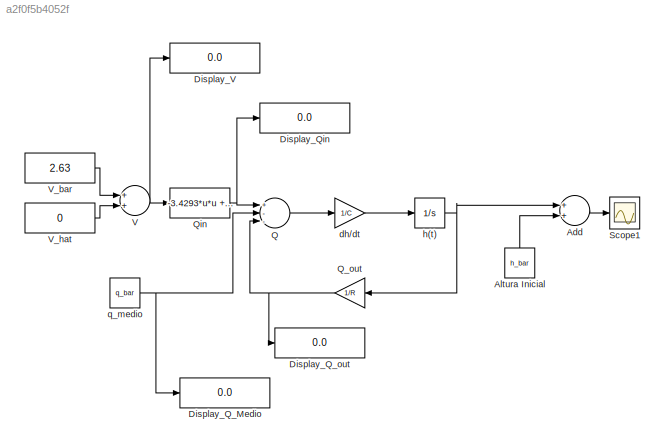
MODEL slx_a2f0f5b4052f
KIND model
BLOCK [Sum] Add
  InputSameDT = off
  OutDataTypeStr = Inherit: Inherit via internal rule
  Ports = [2, 1]
  SaturateOnIntegerOverflow = off
BLOCK [Constant] Altura Inicial
  Value = h_bar
BLOCK [Display] Display_Q_Medio
  Decimation = 1
  Lockdown = off
  Ports = [1]
BLOCK [Display] Display_Q_out
  Decimation = 1
  Lockdown = off
  Ports = [1]
BLOCK [Display] Display_Qin
  Decimation = 1
  Lockdown = off
  Ports = [1]
BLOCK [Display] Display_V
  Decimation = 1
  Lockdown = off
  Ports = [1]
BLOCK [Sum] Q
  InputSameDT = off
  Inputs = +--
  OutDataTypeStr = Inherit: Inherit via internal rule
  Ports = [3, 1]
  SaturateOnIntegerOverflow = off
BLOCK [Gain] Q_out
  Gain = 1/R
  OutDataTypeStr = Inherit: Inherit via internal rule
  ParamDataTypeStr = Inherit: Inherit via internal rule
  SaturateOnIntegerOverflow = off
BLOCK [Fcn] Qin
  Expr = -3.4293*u*u + 33.606*u - 29.925
BLOCK [Scope] Scope1
  DataFormat = StructureWithTime
  Floating = off
  NumInputPorts = 1
  Ports = [1]
  SampleTime = 0
  SaveName = ScopeData1
  ShowLegends = off
  TimeRange = 1660
BLOCK [Sum] V
  InputSameDT = off
  OutDataTypeStr = Inherit: Inherit via internal rule
  Ports = [2, 1]
  SaturateOnIntegerOverflow = off
BLOCK [Constant] V_bar
  Value = 2.63
BLOCK [Constant] V_hat
  Value = 0
BLOCK [Gain] dh//dt
  Gain = 1/C
  OutDataTypeStr = Inherit: Inherit via internal rule
  ParamDataTypeStr = Inherit: Inherit via internal rule
  SaturateOnIntegerOverflow = off
BLOCK [Integrator] h(t)
  Ports = [1, 1]
BLOCK [Constant] q_medio
  Value = q_bar
LINE Add:1 -> Scope1:1
LINE Altura Inicial:1 -> Add:2
LINE Q:1 -> dh//dt:1
NET Q_out:1 -> Display_Q_out:1, Q:3
NET Qin:1 -> Display_Qin:1, Q:1
NET V:1 -> Display_V:1, Qin:1
LINE V_bar:1 -> V:1
LINE V_hat:1 -> V:2
LINE dh//dt:1 -> h(t):1
NET h(t):1 -> Add:1, Q_out:1
NET q_medio:1 -> Display_Q_Medio:1, Q:2
note: NET lines group one-source signal fan-out (src -> all destinations, sorted); 1:1 wires keep LINE
